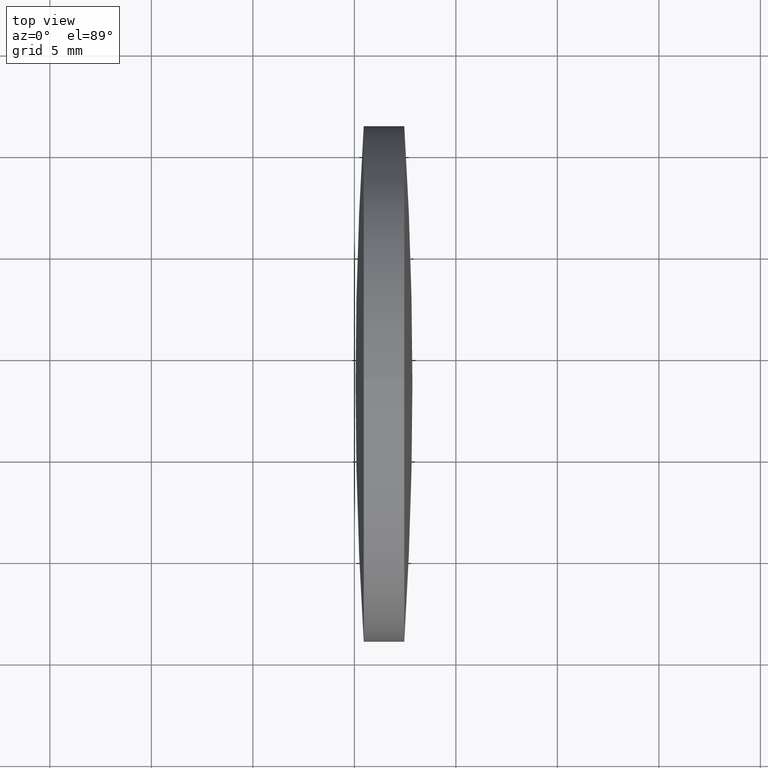
[diagram: clean part render]
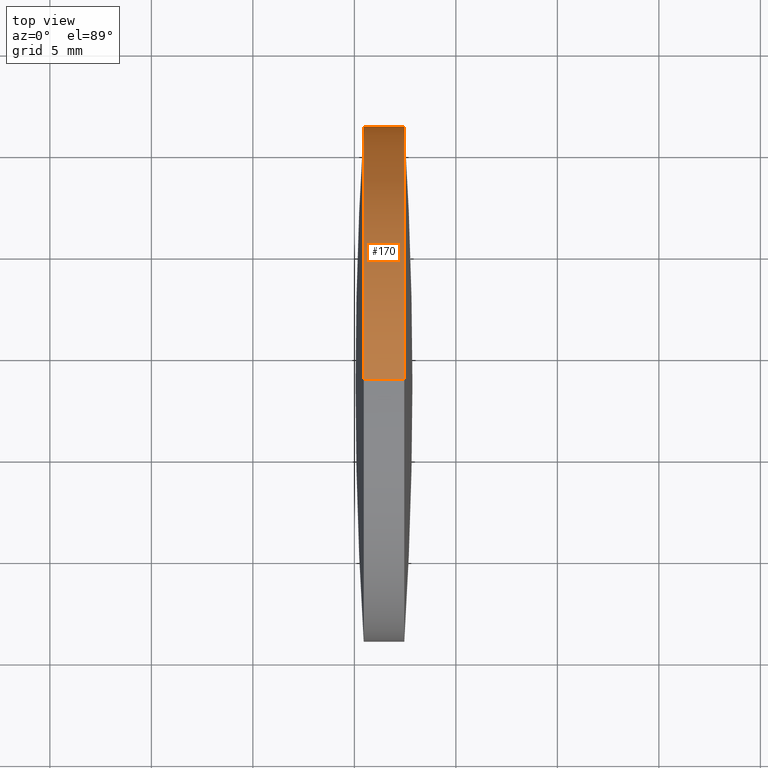
[diagram: same view with one face highlighted and labeled with its STEP entity id]
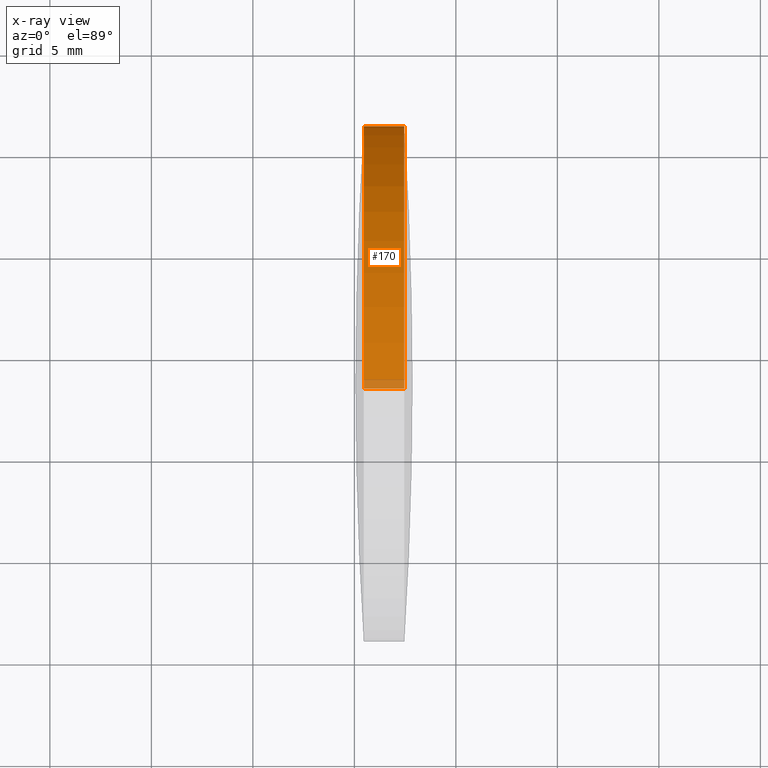
[diagram: x-ray of the same camera — body ghosted, the highlighted face saturated]
A machine part, top view. The second image highlights one B-rep face of the part: STEP entity #170.
The next image is the same camera in x-ray: the body ghosted, the highlighted face saturated — about 3% of this face is hidden behind the body in this view.
In plain terms, the highlighted cylindrical surface (partial cylindrical patch) has radius 12.7 mm, axis along (-1, -0, -0).
Its self-contained STEP definition (entity closure, byte-faithful):
#2 = CARTESIAN_POINT ( 'NONE',  ( 85.45852234609111500, 48.61611302318478100, -12.69999999999999600 ) ) ;
#7 = DIRECTION ( 'NONE',  ( -1.000000000000000000, -0.0000000000000000000, -0.0000000000000000000 ) ) ;
#8 = CARTESIAN_POINT ( 'NONE',  ( 79.30540135083715800, 48.61611302318478100, 0.0000000000000000000 ) ) ;
#26 = CARTESIAN_POINT ( 'NONE',  ( 79.30540135083715800, 48.61611302318478100, 12.69999999999999600 ) ) ;
#31 = EDGE_CURVE ( 'NONE', #328, #52, #111, .T. ) ;
#36 = VERTEX_POINT ( 'NONE', #114 ) ;
#37 = DIRECTION ( 'NONE',  ( 0.0000000000000000000, 0.0000000000000000000, 1.000000000000000000 ) ) ;
#52 = VERTEX_POINT ( 'NONE', #2 ) ;
#59 = CARTESIAN_POINT ( 'NONE',  ( 87.45786520323396500, 48.61611302318478100, -12.69999999999999600 ) ) ;
#63 = DIRECTION ( 'NONE',  ( -1.000000000000000000, -0.0000000000000000000, -0.0000000000000000000 ) ) ;
#69 = LINE ( 'NONE', #94, #197 ) ;
#71 = AXIS2_PLACEMENT_3D ( 'NONE', #167, #245, #241 ) ;
#73 = VERTEX_POINT ( 'NONE', #59 ) ;
#80 = CIRCLE ( 'NONE', #248, 12.69999999999999600 ) ;
#81 = CARTESIAN_POINT ( 'NONE',  ( 85.45852234609111500, 48.61611302318478100, 12.69999999999999600 ) ) ;
#86 = EDGE_LOOP ( 'NONE', ( #247, #97, #169, #190, #230, #186 ) ) ;
#94 = CARTESIAN_POINT ( 'NONE',  ( 79.30540135083715800, 48.61611302318478100, -12.69999999999999600 ) ) ;
#97 = ORIENTED_EDGE ( 'NONE', *, *, #300, .T. ) ;
#102 = LINE ( 'NONE', #26, #278 ) ;
#107 = DIRECTION ( 'NONE',  ( -1.000000000000000000, -0.0000000000000000000, -0.0000000000000000000 ) ) ;
#111 = CIRCLE ( 'NONE', #193, 12.69999999999999600 ) ;
#113 = CARTESIAN_POINT ( 'NONE',  ( 85.45852234609111500, 61.31611302318436400, 0.0000000000000000000 ) ) ;
#114 = CARTESIAN_POINT ( 'NONE',  ( 87.45786520323396500, 48.61611302318478100, 12.69999999999999600 ) ) ;
#116 = CARTESIAN_POINT ( 'NONE',  ( 87.45786520323395100, 61.31611302318497500, 1.555301434917121700E-015 ) ) ;
#123 = AXIS2_PLACEMENT_3D ( 'NONE', #8, #7, #327 ) ;
#126 = VERTEX_POINT ( 'NONE', #116 ) ;
#134 = DIRECTION ( 'NONE',  ( -1.000000000000000000, -0.0000000000000000000, -0.0000000000000000000 ) ) ;
#150 = AXIS2_PLACEMENT_3D ( 'NONE', #216, #271, #37 ) ;
#159 = CARTESIAN_POINT ( 'NONE',  ( 85.45852234609111500, 48.61611302318478100, 0.0000000000000000000 ) ) ;
#167 = CARTESIAN_POINT ( 'NONE',  ( 85.45852234609111500, 48.61611302318478100, 0.0000000000000000000 ) ) ;
#169 = ORIENTED_EDGE ( 'NONE', *, *, #31, .F. ) ;
#170 = ADVANCED_FACE ( 'NONE', ( #306 ), #209, .T. ) ;
#180 = CIRCLE ( 'NONE', #150, 12.69999999999999600 ) ;
#186 = ORIENTED_EDGE ( 'NONE', *, *, #254, .T. ) ;
#189 = DIRECTION ( 'NONE',  ( 0.0000000000000000000, 0.0000000000000000000, 1.000000000000000000 ) ) ;
#190 = ORIENTED_EDGE ( 'NONE', *, *, #236, .F. ) ;
#192 = CARTESIAN_POINT ( 'NONE',  ( 87.45786520323396500, 48.61611302318478100, 0.0000000000000000000 ) ) ;
#193 = AXIS2_PLACEMENT_3D ( 'NONE', #159, #265, #237 ) ;
#194 = EDGE_CURVE ( 'NONE', #126, #73, #180, .T. ) ;
#197 = VECTOR ( 'NONE', #134, 1000.000000000000000 ) ;
#209 = CYLINDRICAL_SURFACE ( 'NONE', #123, 12.69999999999999600 ) ;
#213 = CIRCLE ( 'NONE', #71, 12.69999999999999600 ) ;
#216 = CARTESIAN_POINT ( 'NONE',  ( 87.45786520323396500, 48.61611302318478100, 0.0000000000000000000 ) ) ;
#230 = ORIENTED_EDGE ( 'NONE', *, *, #292, .F. ) ;
#236 = EDGE_CURVE ( 'NONE', #302, #328, #213, .T. ) ;
#237 = DIRECTION ( 'NONE',  ( 0.0000000000000000000, 0.0000000000000000000, 1.000000000000000000 ) ) ;
#241 = DIRECTION ( 'NONE',  ( 0.0000000000000000000, 0.0000000000000000000, 1.000000000000000000 ) ) ;
#245 = DIRECTION ( 'NONE',  ( -1.000000000000000000, -0.0000000000000000000, -0.0000000000000000000 ) ) ;
#247 = ORIENTED_EDGE ( 'NONE', *, *, #194, .T. ) ;
#248 = AXIS2_PLACEMENT_3D ( 'NONE', #192, #63, #189 ) ;
#254 = EDGE_CURVE ( 'NONE', #36, #126, #80, .T. ) ;
#265 = DIRECTION ( 'NONE',  ( -1.000000000000000000, -0.0000000000000000000, -0.0000000000000000000 ) ) ;
#271 = DIRECTION ( 'NONE',  ( -1.000000000000000000, -0.0000000000000000000, -0.0000000000000000000 ) ) ;
#278 = VECTOR ( 'NONE', #107, 1000.000000000000000 ) ;
#292 = EDGE_CURVE ( 'NONE', #36, #302, #102, .T. ) ;
#300 = EDGE_CURVE ( 'NONE', #73, #52, #69, .T. ) ;
#302 = VERTEX_POINT ( 'NONE', #81 ) ;
#306 = FACE_OUTER_BOUND ( 'NONE', #86, .T. ) ;
#327 = DIRECTION ( 'NONE',  ( 0.0000000000000000000, 0.0000000000000000000, 1.000000000000000000 ) ) ;
#328 = VERTEX_POINT ( 'NONE', #113 ) ;